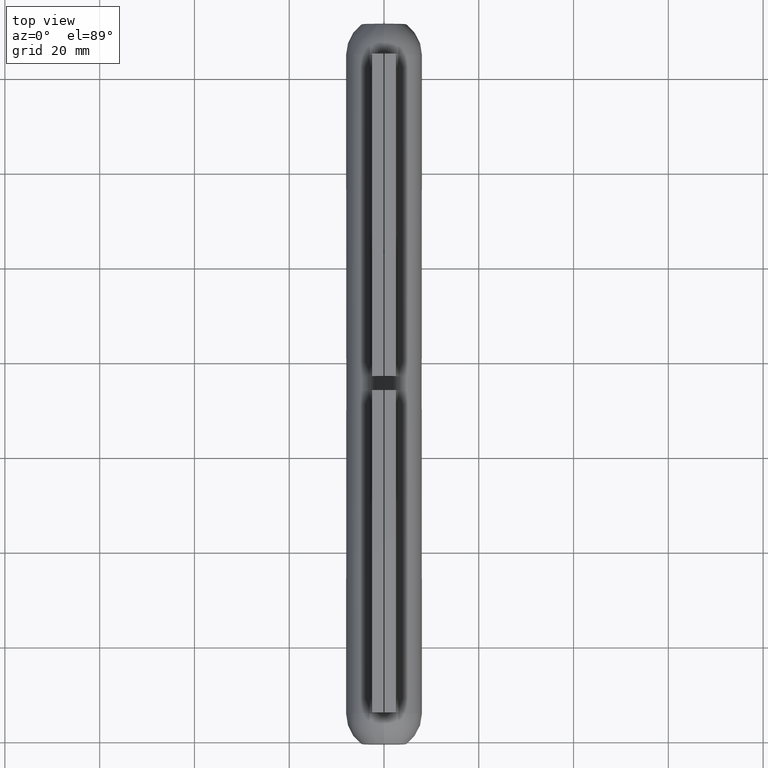
[diagram: clean part render]
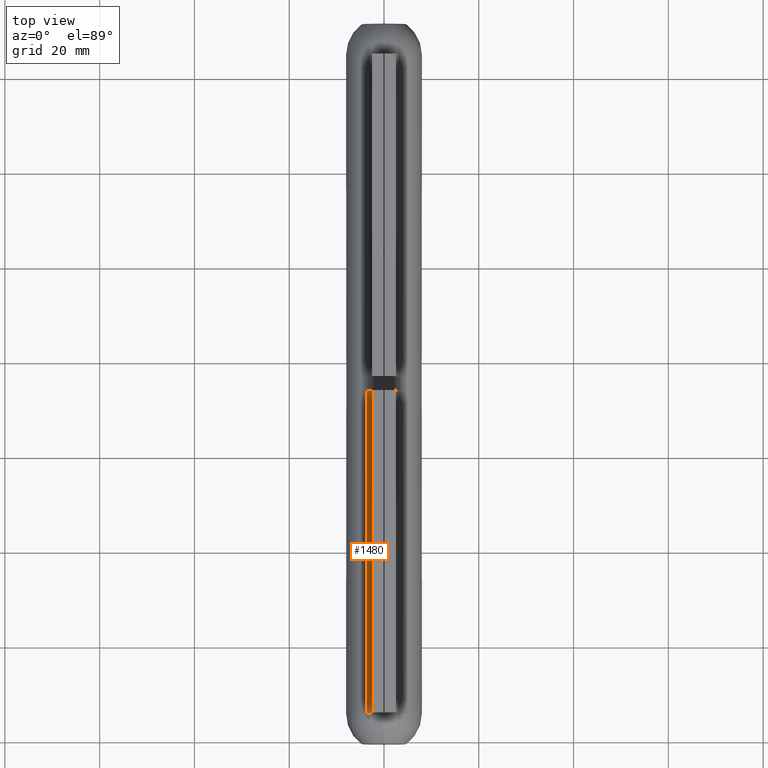
[diagram: same view with one face highlighted and labeled with its STEP entity id]
A machine part, top view. The second image highlights one B-rep face of the part: STEP entity #1480.
In plain terms, the highlighted cylindrical surface (edge-blend (fillet) strip) has radius 2 mm, axis along (-0, -1, -0).
Its self-contained STEP definition (entity closure, byte-faithful):
#567 = VECTOR ( 'NONE', #11546, 1000.000000000000000 ) ;
#1227 = DIRECTION ( 'NONE',  ( 0.000000000000000000, 0.000000000000000000, 1.000000000000000000 ) ) ;
#1459 = CARTESIAN_POINT ( 'NONE',  ( -3.599999999999998757, -34.00000000000000000, 7.144228439796700414 ) ) ;
#1480 = ADVANCED_FACE ( 'NONE', ( #11150 ), #4045, .F. ) ;
#1626 = ORIENTED_EDGE ( 'NONE', *, *, #6448, .F. ) ;
#1739 = LINE ( 'NONE', #8437, #5471 ) ;
#1887 = ORIENTED_EDGE ( 'NONE', *, *, #7940, .F. ) ;
#2703 = VERTEX_POINT ( 'NONE', #7266 ) ;
#2786 = DIRECTION ( 'NONE',  ( 0.000000000000000000, 0.000000000000000000, 1.000000000000000000 ) ) ;
#2852 = VERTEX_POINT ( 'NONE', #9355 ) ;
#3229 = CIRCLE ( 'NONE', #7424, 2.000000000000001776 ) ;
#4045 = CYLINDRICAL_SURFACE ( 'NONE', #12093, 2.000000000000000888 ) ;
#5471 = VECTOR ( 'NONE', #6390, 1000.000000000000000 ) ;
#5958 = CARTESIAN_POINT ( 'NONE',  ( -4.499999999999999112, 34.00000000000000000, 8.930285549745876850 ) ) ;
#6191 = CARTESIAN_POINT ( 'NONE',  ( -4.499999999999999112, -34.00000000000000000, 8.930285549745876850 ) ) ;
#6390 = DIRECTION ( 'NONE',  ( -0.000000000000000000, -1.000000000000000000, -0.000000000000000000 ) ) ;
#6448 = EDGE_CURVE ( 'NONE', #2852, #7556, #7025, .T. ) ;
#7025 = CIRCLE ( 'NONE', #7252, 2.000000000000001776 ) ;
#7204 = CARTESIAN_POINT ( 'NONE',  ( -2.499999999999998224, 34.00000000000000000, 8.930285549745875073 ) ) ;
#7246 = DIRECTION ( 'NONE',  ( -0.000000000000000000, -1.000000000000000000, -0.000000000000000000 ) ) ;
#7252 = AXIS2_PLACEMENT_3D ( 'NONE', #5958, #8737, #2786 ) ;
#7266 = CARTESIAN_POINT ( 'NONE',  ( -2.499999999999998224, -34.00000000000000000, 8.930285549745875073 ) ) ;
#7424 = AXIS2_PLACEMENT_3D ( 'NONE', #6191, #7246, #1227 ) ;
#7556 = VERTEX_POINT ( 'NONE', #7204 ) ;
#7722 = CARTESIAN_POINT ( 'NONE',  ( -3.599999999999998757, 34.00000000000000000, 7.144228439796700414 ) ) ;
#7763 = CARTESIAN_POINT ( 'NONE',  ( -4.499999999999999112, 34.00000000000000000, 8.930285549745876850 ) ) ;
#7940 = EDGE_CURVE ( 'NONE', #7556, #2703, #1739, .T. ) ;
#7965 = ORIENTED_EDGE ( 'NONE', *, *, #11095, .T. ) ;
#8437 = CARTESIAN_POINT ( 'NONE',  ( -2.499999999999998224, 34.00000000000000000, 8.930285549745875073 ) ) ;
#8737 = DIRECTION ( 'NONE',  ( -0.000000000000000000, -1.000000000000000000, -0.000000000000000000 ) ) ;
#9173 = ORIENTED_EDGE ( 'NONE', *, *, #10955, .T. ) ;
#9355 = CARTESIAN_POINT ( 'NONE',  ( -3.599999999999998757, 34.00000000000000000, 7.144228439796700414 ) ) ;
#9659 = EDGE_LOOP ( 'NONE', ( #9173, #1887, #1626, #7965 ) ) ;
#9708 = LINE ( 'NONE', #7722, #567 ) ;
#10023 = DIRECTION ( 'NONE',  ( 0.000000000000000000, 0.000000000000000000, -1.000000000000000000 ) ) ;
#10715 = VERTEX_POINT ( 'NONE', #1459 ) ;
#10928 = DIRECTION ( 'NONE',  ( -0.000000000000000000, -1.000000000000000000, -0.000000000000000000 ) ) ;
#10955 = EDGE_CURVE ( 'NONE', #10715, #2703, #3229, .T. ) ;
#11095 = EDGE_CURVE ( 'NONE', #2852, #10715, #9708, .T. ) ;
#11150 = FACE_OUTER_BOUND ( 'NONE', #9659, .T. ) ;
#11546 = DIRECTION ( 'NONE',  ( -0.000000000000000000, -1.000000000000000000, -0.000000000000000000 ) ) ;
#12093 = AXIS2_PLACEMENT_3D ( 'NONE', #7763, #10928, #10023 ) ;